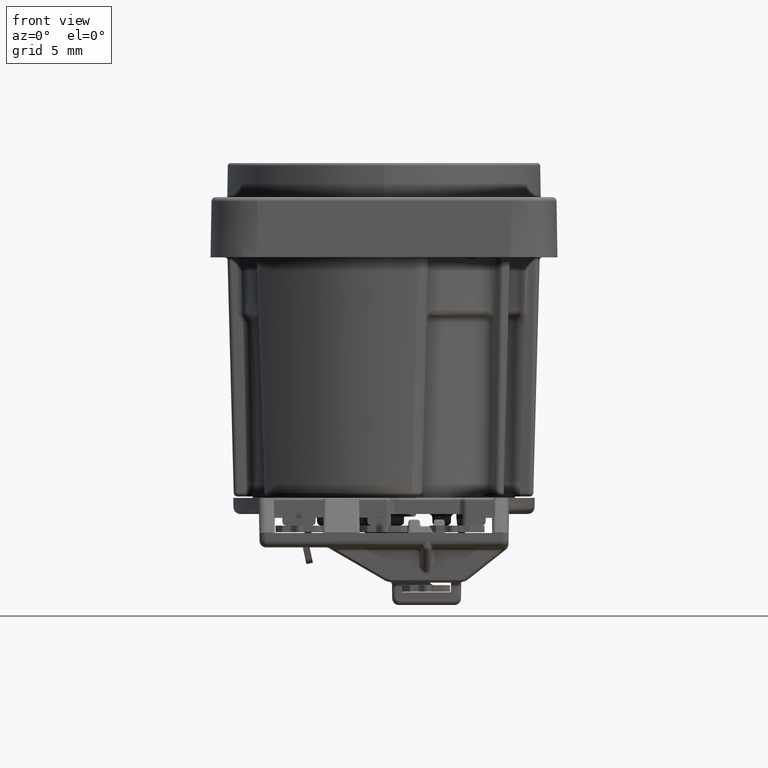
[diagram: clean part render]
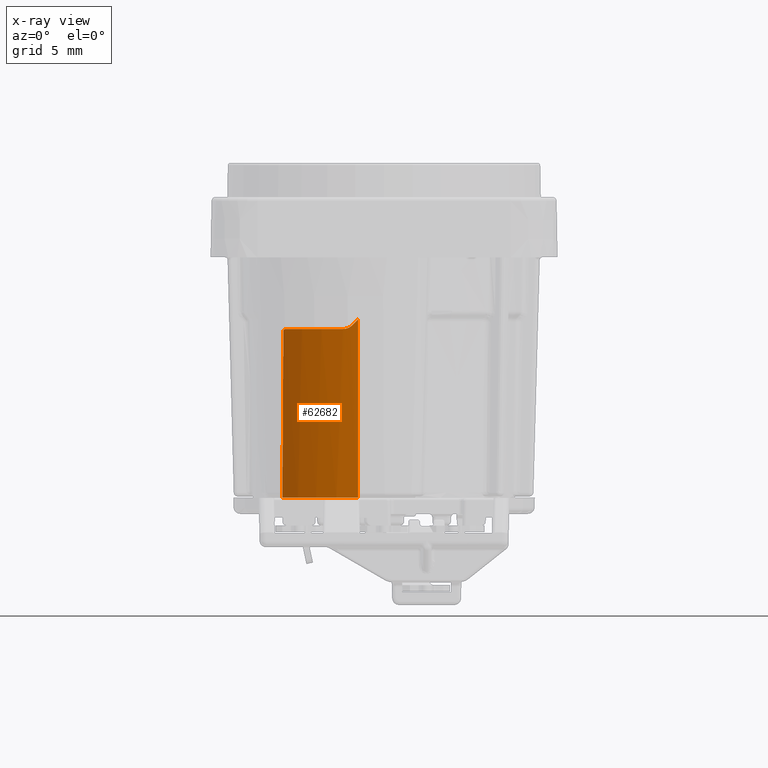
[diagram: x-ray — body ghosted, one internal face saturated and labeled with its STEP entity id]
A machine part, front view, then the same camera in x-ray: the body is ghosted and one INTERNAL B-rep face — a face not visible from any outside direction — is saturated and labeled: STEP entity #62682.
In plain terms, the highlighted cylindrical surface (partial cylindrical patch) has radius 9.7999 mm, axis along (0, 0, 1).
Its self-contained STEP definition (entity closure, byte-faithful):
#62321=CARTESIAN_POINT('',(-2.357106781187E0,-9.512242898996E0,
-5.057106781187E0));
#62322=CARTESIAN_POINT('',(-2.219833931577E0,-9.546258721355E0,
-4.919833931577E0));
#62323=CARTESIAN_POINT('',(-2.082215976947E0,-9.577207644061E0,
-4.782215976947E0));
#62324=CARTESIAN_POINT('',(-1.944257787817E0,-9.605132950768E0,
-4.644257787817E0));
#62326=CARTESIAN_POINT('',(-2.357106781187E0,-9.512242898996E0,
-5.057106781187E0));
#62327=CARTESIAN_POINT('',(-2.393554994711E0,-9.503211135176E0,
-5.093554994711E0));
#62328=CARTESIAN_POINT('',(-2.472287996953E0,-9.483261739593E0,
-5.161075087507E0));
#62329=CARTESIAN_POINT('',(-2.606660396233E0,-9.447275612001E0,
-5.243769366679E0));
#62330=CARTESIAN_POINT('',(-2.750753876305E0,-9.406390493193E0,
-5.303932093206E0));
#62331=CARTESIAN_POINT('',(-2.905420049040E0,-9.359825211280E0,
-5.341590444416E0));
#62332=CARTESIAN_POINT('',(-3.011138414433E0,-9.326032651543E0,-5.35E0));
#62333=CARTESIAN_POINT('',(-3.064213562373E0,-9.308561252502E0,-5.35E0));
#62349=DIRECTION('',(0.E0,0.E0,1.E0));
#62350=VECTOR('',#62349,1.330574221218E1);
#62351=CARTESIAN_POINT('',(-1.944257787817E0,-9.605132950768E0,-1.795E1));
#62352=LINE('',#62351,#62350);
#62353=CARTESIAN_POINT('',(0.E0,0.E0,-5.35E0));
#62354=DIRECTION('',(0.E0,0.E0,1.E0));
#62355=DIRECTION('',(-7.534142540692E-1,-6.575461670221E-1,0.E0));
#62356=AXIS2_PLACEMENT_3D('',#62353,#62354,#62355);
#62406=CARTESIAN_POINT('',(0.E0,0.E0,-1.795E1));
#62407=DIRECTION('',(0.E0,0.E0,1.E0));
#62408=DIRECTION('',(-7.740148476964E-1,-6.331674466881E-1,0.E0));
#62409=AXIS2_PLACEMENT_3D('',#62406,#62407,#62408);
#62419=CARTESIAN_POINT('',(-7.585294854595E0,-6.204999542004E0,-1.795E1));
#62420=CARTESIAN_POINT('',(-7.562047222491E0,-6.233418584259E0,
-1.381608523308E1));
#62421=CARTESIAN_POINT('',(-7.538664605174E0,-6.261676761964E0,
-9.682170130025E0));
#62422=CARTESIAN_POINT('',(-7.515147834046E0,-6.289775065918E0,
-5.548254692900E0));
#62440=CARTESIAN_POINT('',(-7.383410385185E0,-6.443909405892E0,-5.35E0));
#62441=CARTESIAN_POINT('',(-7.393234330838E0,-6.432653160998E0,-5.35E0));
#62442=CARTESIAN_POINT('',(-7.412920376416E0,-6.409992377279E0,
-5.353245022464E0));
#62443=CARTESIAN_POINT('',(-7.441497307416E0,-6.376787112484E0,
-5.368316097818E0));
#62444=CARTESIAN_POINT('',(-7.466502714782E0,-6.347477075058E0,
-5.392306283993E0));
#62445=CARTESIAN_POINT('',(-7.487045907156E0,-6.323221229951E0,
-5.423442709330E0));
#62446=CARTESIAN_POINT('',(-7.502898892604E0,-6.304392070396E0,
-5.461390526257E0));
#62447=CARTESIAN_POINT('',(-7.512840171564E0,-6.292533687155E0,
-5.504373892655E0));
#62448=CARTESIAN_POINT('',(-7.515065029669E0,-6.289874002229E0,
-5.533698855625E0));
#62449=CARTESIAN_POINT('',(-7.515147834046E0,-6.289775065918E0,
-5.548254692900E0));
#62463=CARTESIAN_POINT('',(-7.383410385185E0,-6.443909405892E0,-5.35E0));
#62464=CARTESIAN_POINT('',(-3.064213562373E0,-9.308561252502E0,-5.35E0));
#62465=VERTEX_POINT('',#62463);
#62466=VERTEX_POINT('',#62464);
#62467=VERTEX_POINT('',#62419);
#62468=VERTEX_POINT('',#62422);
#62469=VERTEX_POINT('',#62326);
#62471=CARTESIAN_POINT('',(-1.944257787817E0,-9.605132950768E0,
-4.644257787817E0));
#62473=VERTEX_POINT('',#62471);
#62477=CARTESIAN_POINT('',(-1.944257787817E0,-9.605132950768E0,-1.795E1));
#62479=VERTEX_POINT('',#62477);
#62664=CARTESIAN_POINT('',(0.E0,0.E0,-1.795E1));
#62665=DIRECTION('',(0.E0,0.E0,1.E0));
#62666=DIRECTION('',(1.E0,0.E0,0.E0));
#62667=AXIS2_PLACEMENT_3D('',#62664,#62665,#62666);
#62668=CYLINDRICAL_SURFACE('',#62667,9.799934558323E0);
#62669=ORIENTED_EDGE('',*,*,#62627,.T.);
#62670=ORIENTED_EDGE('',*,*,#62645,.F.);
#62671=ORIENTED_EDGE('',*,*,#62655,.T.);
#62673=ORIENTED_EDGE('',*,*,#62672,.F.);
#62675=ORIENTED_EDGE('',*,*,#62674,.T.);
#62677=ORIENTED_EDGE('',*,*,#62676,.F.);
#62679=ORIENTED_EDGE('',*,*,#62678,.T.);
#62680=EDGE_LOOP('',(#62669,#62670,#62671,#62673,#62675,#62677,#62679));
#62681=FACE_OUTER_BOUND('',#62680,.F.);
#62682=ADVANCED_FACE('',(#62681),#62668,.F.);
#62325=B_SPLINE_CURVE_WITH_KNOTS('',3,(#62321,#62322,#62323,#62324),
.UNSPECIFIED.,.F.,.F.,(4,4),(0.E0,1.E0),.UNSPECIFIED.);
#62334=B_SPLINE_CURVE_WITH_KNOTS('',3,(#62326,#62327,#62328,#62329,#62330,
#62331,#62332,#62333),.UNSPECIFIED.,.F.,.F.,(4,1,1,1,1,4),(0.E0,2.E-1,4.E-1,
6.E-1,8.E-1,1.E0),.UNSPECIFIED.);
#62357=CIRCLE('',#62356,9.799934558323E0);
#62410=CIRCLE('',#62409,9.799934558323E0);
#62423=B_SPLINE_CURVE_WITH_KNOTS('',3,(#62419,#62420,#62421,#62422),
.UNSPECIFIED.,.F.,.F.,(4,4),(0.E0,1.E0),.UNSPECIFIED.);
#62450=B_SPLINE_CURVE_WITH_KNOTS('',3,(#62440,#62441,#62442,#62443,#62444,
#62445,#62446,#62447,#62448,#62449),.UNSPECIFIED.,.F.,.F.,(4,1,1,1,1,1,1,4),(
0.E0,1.428571428571E-1,2.857142857143E-1,4.285714285714E-1,5.714285714286E-1,
7.142857142857E-1,8.571428571429E-1,1.E0),.UNSPECIFIED.);
#62627=EDGE_CURVE('',#62479,#62473,#62352,.T.);
#62645=EDGE_CURVE('',#62469,#62473,#62325,.T.);
#62655=EDGE_CURVE('',#62469,#62466,#62334,.T.);
#62672=EDGE_CURVE('',#62465,#62466,#62357,.T.);
#62674=EDGE_CURVE('',#62465,#62468,#62450,.T.);
#62676=EDGE_CURVE('',#62467,#62468,#62423,.T.);
#62678=EDGE_CURVE('',#62467,#62479,#62410,.T.);